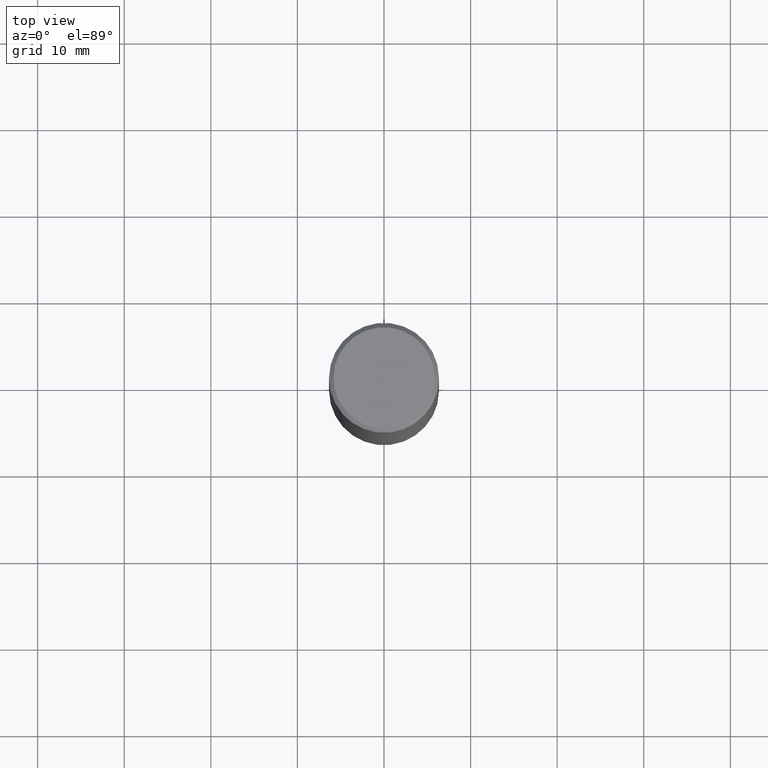
[diagram: clean part render]
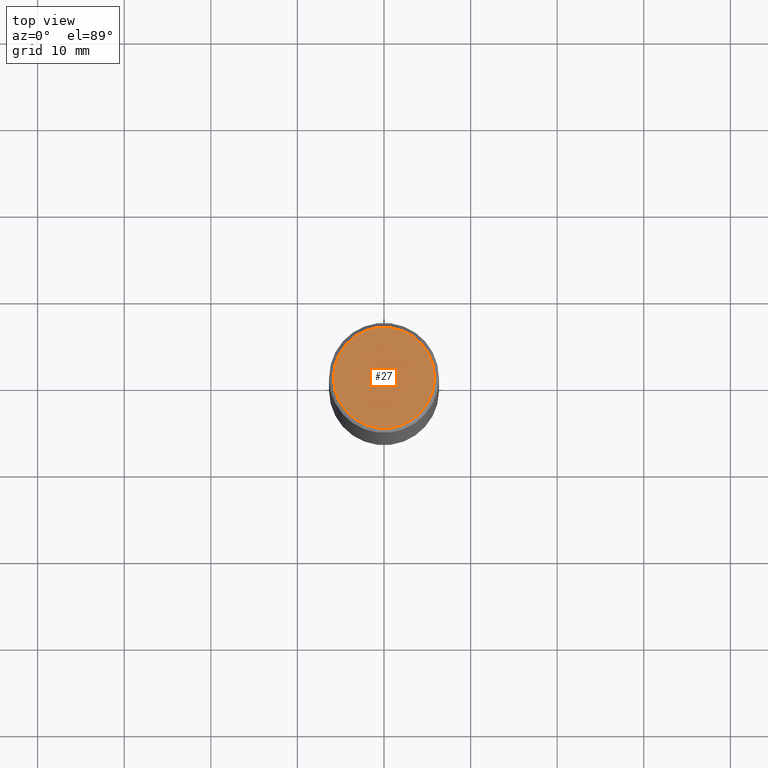
[diagram: same view with one face highlighted and labeled with its STEP entity id]
A machine part, top view. The second image highlights one B-rep face of the part: STEP entity #27.
In plain terms, the highlighted planar face has unit normal (0, -0, -1).
Its self-contained STEP definition (entity closure, byte-faithful):
#4 = FACE_OUTER_BOUND ( 'NONE', #198, .T. ) ;
#16 = DIRECTION ( 'NONE',  ( -2.445468806185136597E-29, 3.491481338843145583E-15, 1.000000000000000000 ) ) ;
#27 = ADVANCED_FACE ( 'NONE', ( #4 ), #120, .F. ) ;
#28 = AXIS2_PLACEMENT_3D ( 'NONE', #139, #276, #306 ) ;
#78 = CARTESIAN_POINT ( 'NONE',  ( 0.2299999999999997324, -1.681434332853597236E-15, 4.268512490111905999E-18 ) ) ;
#83 = ORIENTED_EDGE ( 'NONE', *, *, #230, .T. ) ;
#104 = ORIENTED_EDGE ( 'NONE', *, *, #313, .T. ) ;
#120 = PLANE ( 'NONE',  #214 ) ;
#123 = AXIS2_PLACEMENT_3D ( 'NONE', #177, #16, #217 ) ;
#139 = CARTESIAN_POINT ( 'NONE',  ( -1.043851414335219820E-46, 1.490343170380447200E-32, 4.268512490100411279E-18 ) ) ;
#142 = DIRECTION ( 'NONE',  ( -1.000000000000000000, 6.982962677686265922E-15, -4.876176775795935793E-29 ) ) ;
#177 = CARTESIAN_POINT ( 'NONE',  ( -1.043851414335219820E-46, 1.490343170380447200E-32, 4.268512490100411279E-18 ) ) ;
#198 = EDGE_LOOP ( 'NONE', ( #83, #104 ) ) ;
#214 = AXIS2_PLACEMENT_3D ( 'NONE', #312, #259, #142 ) ;
#217 = DIRECTION ( 'NONE',  ( 1.000000000000000000, -6.982962677686266711E-15, 4.876225828469314487E-29 ) ) ;
#230 = EDGE_CURVE ( 'NONE', #272, #363, #231, .T. ) ;
#231 = CIRCLE ( 'NONE', #28, 0.2299999999999997324 ) ;
#259 = DIRECTION ( 'NONE',  ( 2.438088387897960049E-29, -3.491481338843145188E-15, -1.000000000000000000 ) ) ;
#269 = CIRCLE ( 'NONE', #123, 0.2299999999999997324 ) ;
#272 = VERTEX_POINT ( 'NONE', #354 ) ;
#276 = DIRECTION ( 'NONE',  ( -2.445468806185136597E-29, 3.491481338843145583E-15, 1.000000000000000000 ) ) ;
#306 = DIRECTION ( 'NONE',  ( 1.000000000000000000, -6.982962677686266711E-15, 4.876225828469314487E-29 ) ) ;
#312 = CARTESIAN_POINT ( 'NONE',  ( 1.606081415867839292E-15, 0.2299999999999997324, -8.009064516888723911E-16 ) ) ;
#313 = EDGE_CURVE ( 'NONE', #363, #272, #269, .T. ) ;
#354 = CARTESIAN_POINT ( 'NONE',  ( -0.2299999999999997324, 1.640996229256270744E-15, 4.268512490089056766E-18 ) ) ;
#363 = VERTEX_POINT ( 'NONE', #78 ) ;